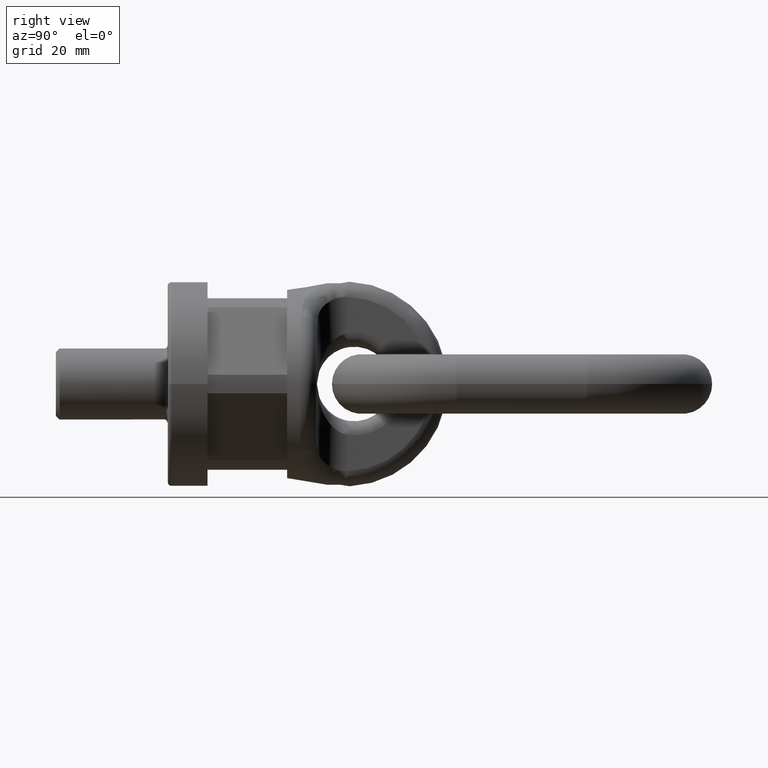
[diagram: clean part render]
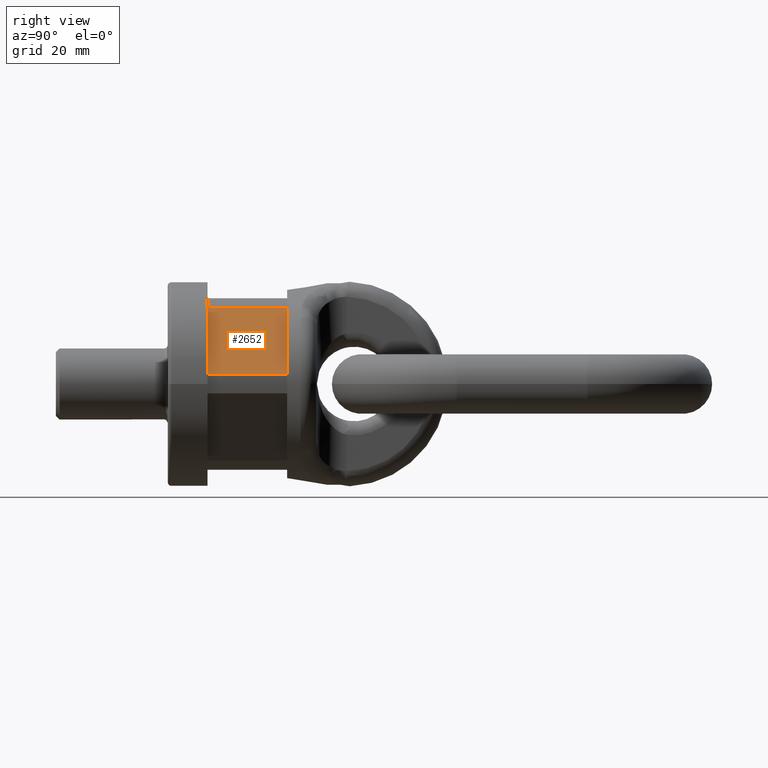
[diagram: same view with one face highlighted and labeled with its STEP entity id]
A machine part, right view. The second image highlights one B-rep face of the part: STEP entity #2652.
In plain terms, the highlighted planar face has unit normal (0.866, 0, 0.5).
Its self-contained STEP definition (entity closure, byte-faithful):
#1810=FACE_OUTER_BOUND('',#3075,.T.);
#2041=LINE('',#6577,#2297);
#2059=LINE('',#6629,#2315);
#2060=LINE('',#6631,#2316);
#2061=LINE('',#6633,#2317);
#2297=VECTOR('',#5819,1.);
#2315=VECTOR('',#5863,1.);
#2316=VECTOR('',#5864,1.);
#2317=VECTOR('',#5865,1.);
#2652=ADVANCED_FACE('',(#1810),#2894,.T.);
#2894=PLANE('',#5621);
#3075=EDGE_LOOP('',(#3384,#3385,#3386,#3387));
#3384=ORIENTED_EDGE('',*,*,#4969,.F.);
#3385=ORIENTED_EDGE('',*,*,#4944,.T.);
#3386=ORIENTED_EDGE('',*,*,#4970,.F.);
#3387=ORIENTED_EDGE('',*,*,#4971,.T.);
#4546=VERTEX_POINT('',#6578);
#4547=VERTEX_POINT('',#6579);
#4567=VERTEX_POINT('',#6630);
#4568=VERTEX_POINT('',#6632);
#4944=EDGE_CURVE('',#4546,#4547,#2041,.T.);
#4969=EDGE_CURVE('',#4546,#4567,#2059,.T.);
#4970=EDGE_CURVE('',#4568,#4547,#2060,.T.);
#4971=EDGE_CURVE('',#4568,#4567,#2061,.T.);
#5621=AXIS2_PLACEMENT_3D('',#6634,#5866,#5867);
#5819=DIRECTION('',(0.499999999999999,2.05702392044282E-17,-0.866025403784439));
#5863=DIRECTION('',(-2.4492935982947E-17,1.,0.));
#5864=DIRECTION('',(2.4492935982947E-17,-1.,0.));
#5865=DIRECTION('',(-0.499999999999999,0.,0.866025403784439));
#5866=DIRECTION('',(0.866025403784439,0.,0.499999999999999));
#5867=DIRECTION('',(0.499999999999999,0.,-0.866025403784439));
#6577=CARTESIAN_POINT('',(26.793584287042,10.6666666666667,-0.407849302036056));
#6578=CARTESIAN_POINT('',(14.7329470712957,10.6666666666667,20.4817871272927));
#6579=CARTESIAN_POINT('',(25.1042215027884,10.6666666666667,2.51821287270725));
#6629=CARTESIAN_POINT('',(14.7329470712957,-1.27011480356063E-16,20.4817871272927));
#6630=CARTESIAN_POINT('',(14.7329470712957,32.,20.4817871272927));
#6631=CARTESIAN_POINT('',(25.1042215027884,1.27011480356063E-16,2.51821287270725));
#6632=CARTESIAN_POINT('',(25.1042215027884,32.,2.51821287270725));
#6633=CARTESIAN_POINT('',(26.5581123827227,32.,0.));
#6634=CARTESIAN_POINT('',(26.5581123827227,32.,0.));